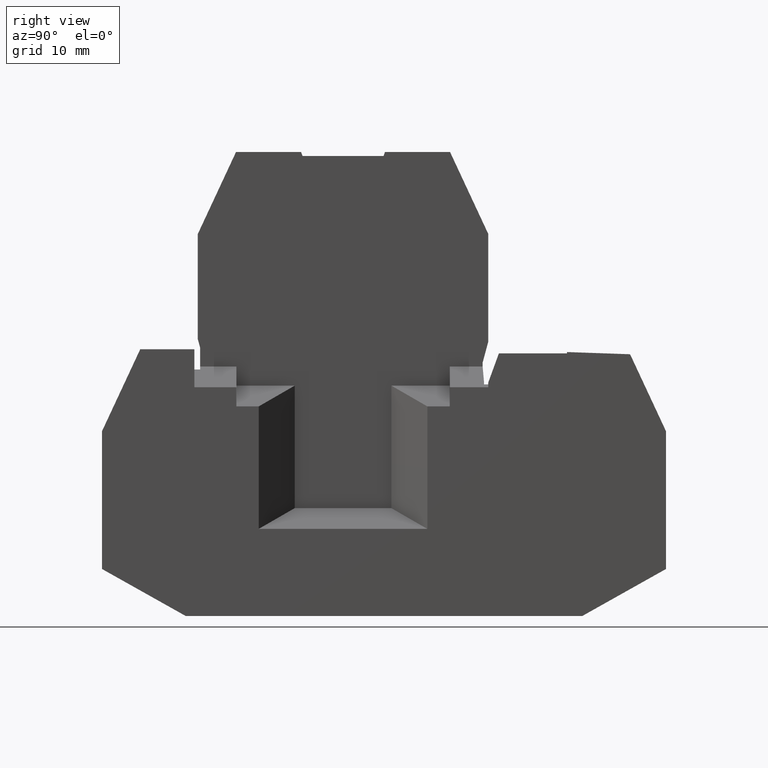
[diagram: clean part render]
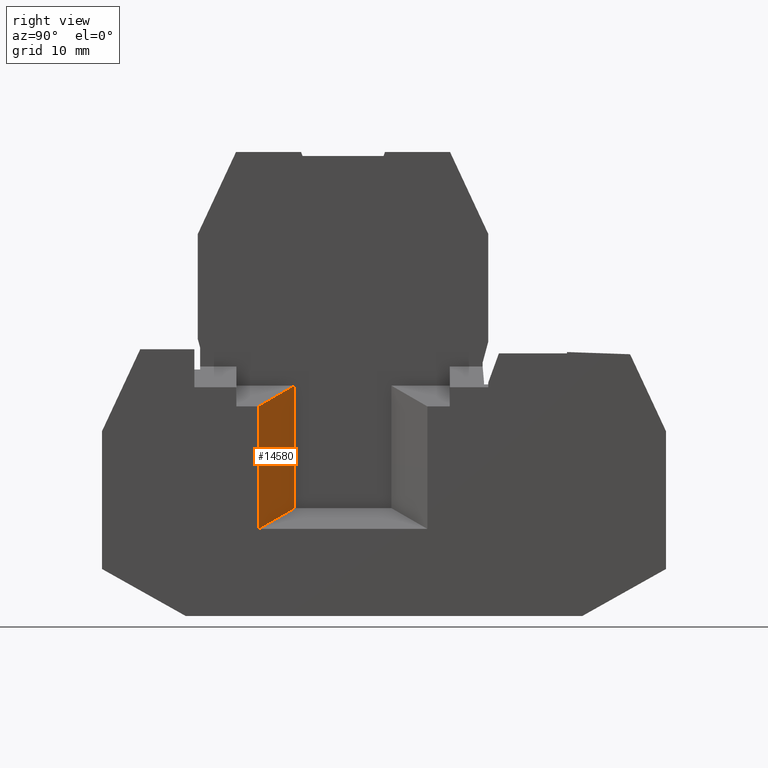
[diagram: same view with one face highlighted and labeled with its STEP entity id]
A machine part, right view. The second image highlights one B-rep face of the part: STEP entity #14580.
In plain terms, the highlighted planar face has unit normal (0.866, 0.5, 0).
Its self-contained STEP definition (entity closure, byte-faithful):
#440=CARTESIAN_POINT('',(-16.505519948176,-25.025731982023,
15.5000000000049));
#450=VERTEX_POINT('',#440);
#480=CARTESIAN_POINT('',(-16.5055199481843,9.83366000003753,
15.5000000000049));
#490=DIRECTION('',(-2.38220729117235E-13,1.,-6.27738547649573E-30));
#500=VECTOR('',#490,1.);
#510=LINE('',#480,#500);
#520=CARTESIAN_POINT('',(-16.5055199481804,-9.8507333902624,
15.5000000000049));
#530=VERTEX_POINT('',#520);
#540=EDGE_CURVE('',#450,#530,#510,.T.);
#1970=CARTESIAN_POINT('',(-12.6172159999997,-7.60582005909004,
13.2550866688374));
#1980=DIRECTION('',(0.774596669241876,0.447213595500102,
-0.447213595499134));
#1990=VECTOR('',#1980,1.);
#2000=LINE('',#1970,#1990);
#2010=CARTESIAN_POINT('',(-20.9655503638568,-12.4257333903066,
18.0750000000435));
#2020=VERTEX_POINT('',#2010);
#2030=EDGE_CURVE('',#2020,#530,#2000,.T.);
#5230=CARTESIAN_POINT('',(-20.9655507777521,9.83366000003753,
18.0750000000435));
#5240=DIRECTION('',(-2.38220729117235E-13,1.,-6.27738547649573E-30));
#5250=VECTOR('',#5240,1.);
#5260=LINE('',#5230,#5250);
#5270=CARTESIAN_POINT('',(-20.9655507777432,-27.6007319820672,
18.0750000000435));
#5280=VERTEX_POINT('',#5270);
#5290=EDGE_CURVE('',#5280,#2020,#5260,.T.);
#13000=CARTESIAN_POINT('',(-12.6172159999997,-22.7808186508527,
13.2550866688395));
#13010=DIRECTION('',(-0.774596669241877,-0.447213595500099,
0.447213595499135));
#13020=VECTOR('',#13010,1.);
#13030=LINE('',#13000,#13020);
#13040=EDGE_CURVE('',#450,#5280,#13030,.T.);
#14470=CARTESIAN_POINT('',(-15.2976360602698,-19.9057575952179,
14.8026279121735));
#14480=DIRECTION('',(0.499999999999068,1.19110364558396E-13,
0.866025403784977));
#14490=DIRECTION('',(-0.866025403784977,-1.63780967727353E-13,
0.499999999999068));
#14500=AXIS2_PLACEMENT_3D('',#14470,#14480,#14490);
#14510=PLANE('',#14500);
#14520=ORIENTED_EDGE('',*,*,#5290,.F.);
#14530=ORIENTED_EDGE('',*,*,#2030,.F.);
#14540=ORIENTED_EDGE('',*,*,#540,.T.);
#14550=ORIENTED_EDGE('',*,*,#13040,.F.);
#14560=EDGE_LOOP('',(#14550,#14540,#14530,#14520));
#14570=FACE_OUTER_BOUND('',#14560,.T.);
#14580=ADVANCED_FACE('',(#14570),#14510,.T.);